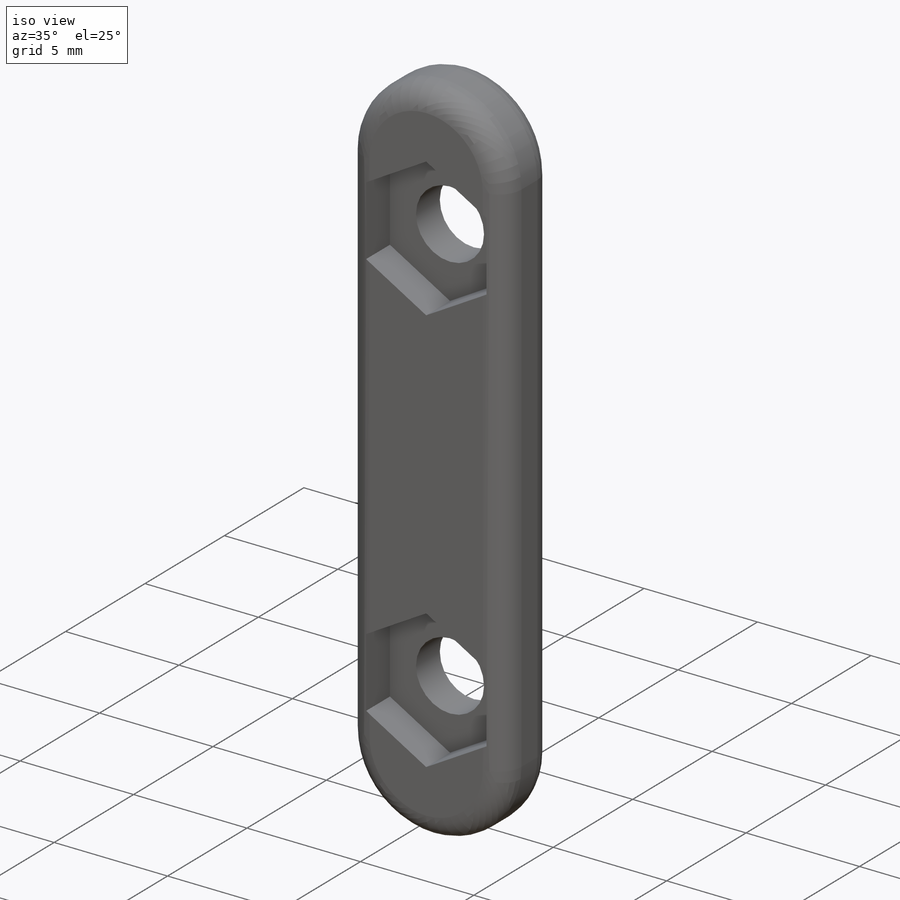
[diagram: iso view]
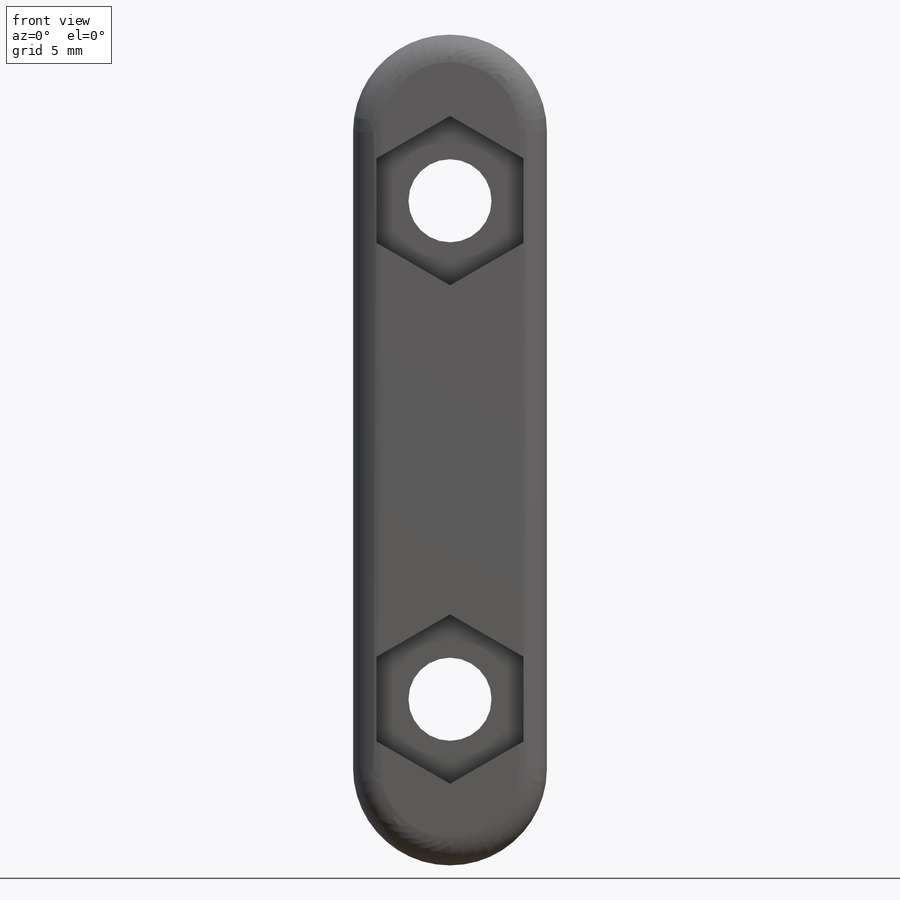
[diagram: front view]
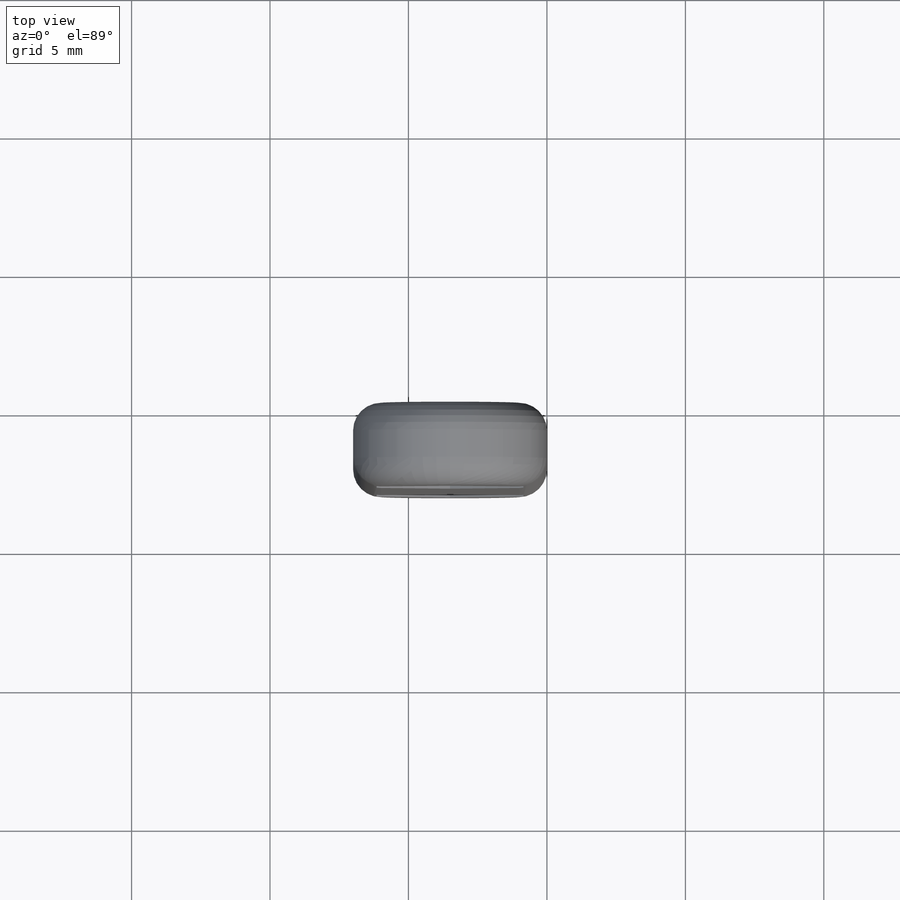
[diagram: top view]
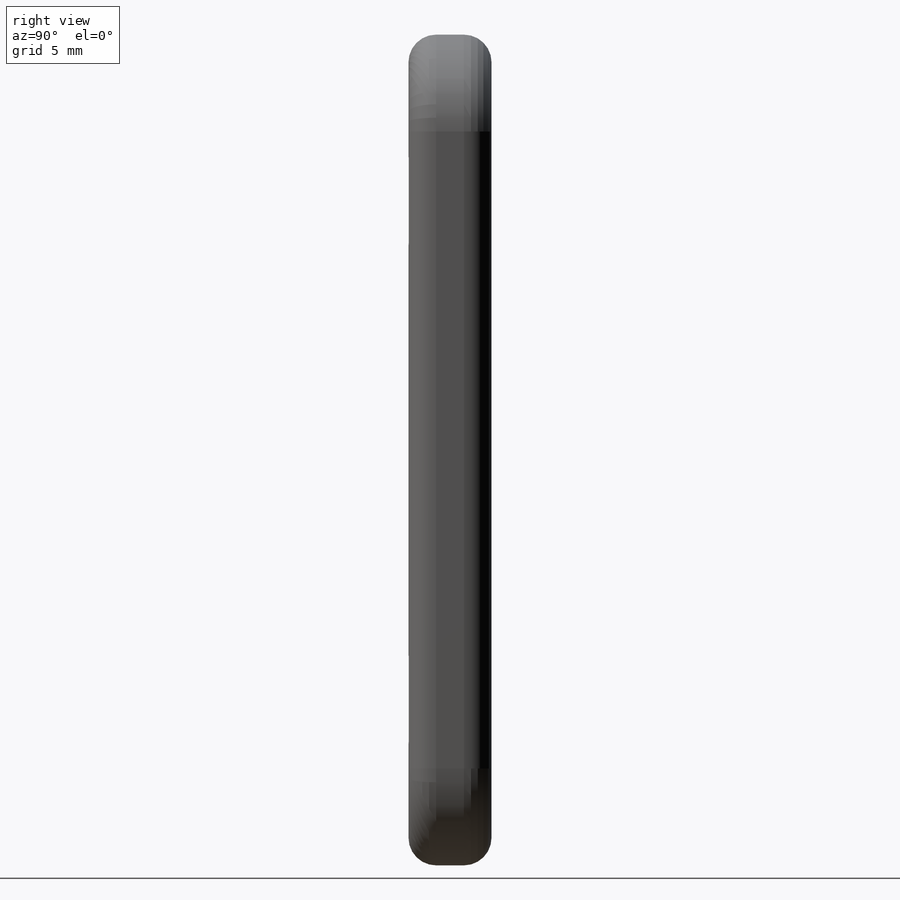
[diagram: right view]
SOLIDWORKS PART (.sldprt)
format: sldprt  version: not decoded by parser v0  size: 231,936 bytes
history: native  units: mm
features: plane x3, sketch x3, cut_extrude x2, fillet x2, material x1, extrude x1 (+9 scaffold rows collapsed)
feature tree (21):
  scaffold x9  (default folders/planes/origin — collapsed)
  material  "Material <not specified>"
  plane  "Plan de face"
  plane  "Plan de dessus"
  plane  "Plan de droite"
  sketch  "Sketch1"  dims[D1=30.0mm D2=7.0mm]
  extrude  "Boss-Extrude1"  Depth=3mm
  sketch  "Sketch2"  dims[c1.D1=5.3mm c1.D2=5.3mm c1.D4=5.3mm c1.D5=5.3mm c1.D6=5.3mm c1.D3=3.5mm c2.D4=3.5mm c2.D5=6.0mm c2.D6=6.0mm]
  cut_extrude  "Cut-Extrude1"  Depth=1.5mm
  sketch  "Sketch3"  dims[c1.D1=3.0mm c1.D2=2.2mm c1.D3=2.2mm c1.D4=3.0mm c1.D5=2.2mm c1.D6=2.2mm c2.D2=3.5mm c2.D3=6.0mm c2.D5=6.0mm c2.D6=3.5mm]
  cut_extrude  "Cut-Extrude2"  [1 undecoded]
  fillet  "Fillet1"  Radius=3.5mm
  fillet  "Fillet2"  Radius=1mm
decode coverage: 7 of 8 modeling features carry decoded parameters
note: 1 parameter value undecoded
note: suppression state not decoded; provenance and decode notes live in map.json
